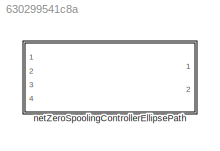
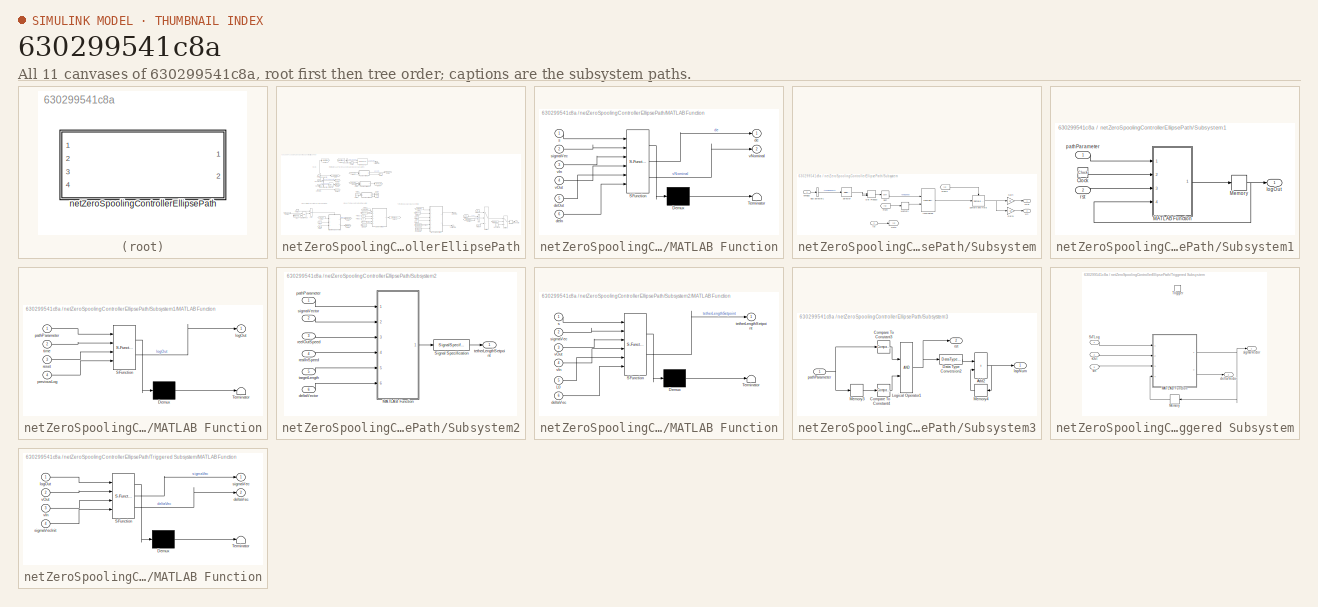
[diagram: thumbnail index - all 11 canvases of the model, root first then tree order]
MODEL slx_630299541c8a
KIND library
CONFIG AbsTol = auto
CONFIG EnableMultiTasking = off
CONFIG FixedStep = auto
CONFIG MaxStep = auto
CONFIG MinStep = auto
CONFIG RelTol = 1e-3
CONFIG SampleTimeConstraint = Unconstrained
CONFIG Solver = VariableStepAuto
CONFIG SolverName = VariableStepAuto
CONFIG StartTime = 0.0
CONFIG StopTime = 10.0
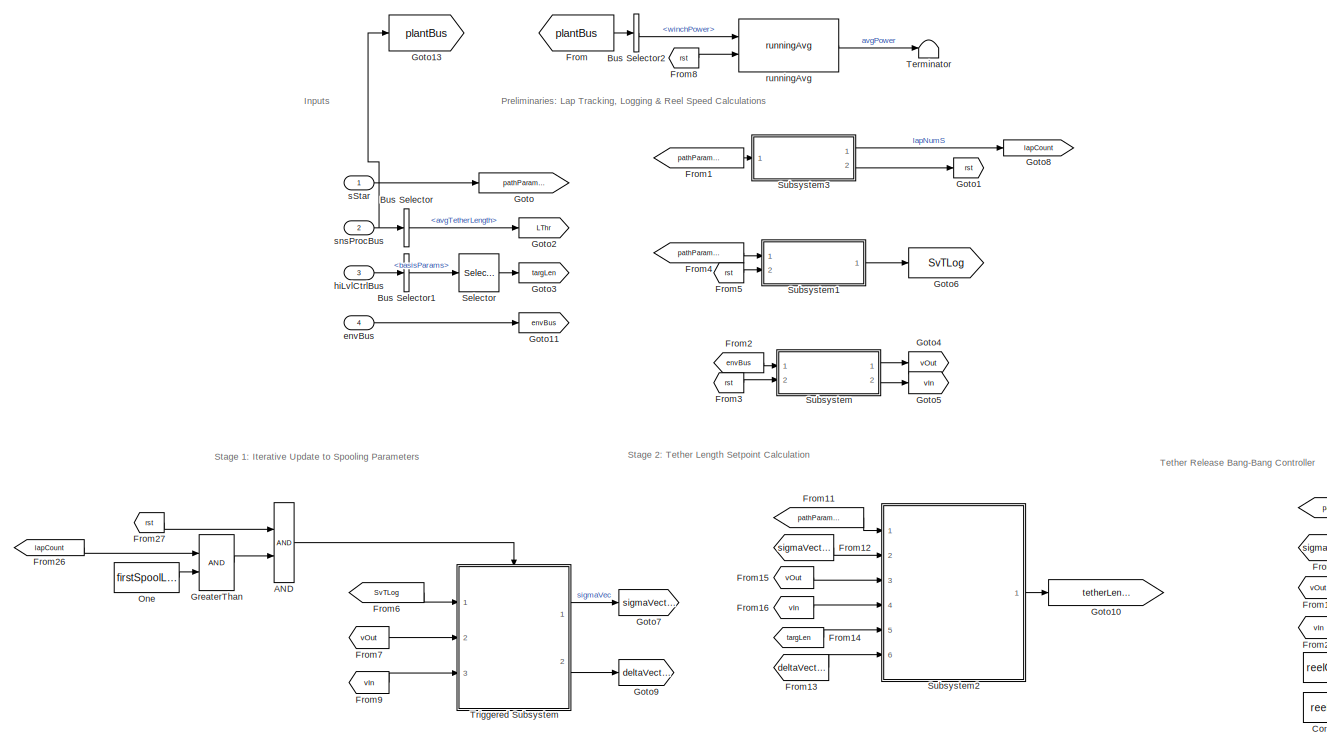
[diagram: netZeroSpoolingControllerEllipsePath - part 1/2, left side, full height]
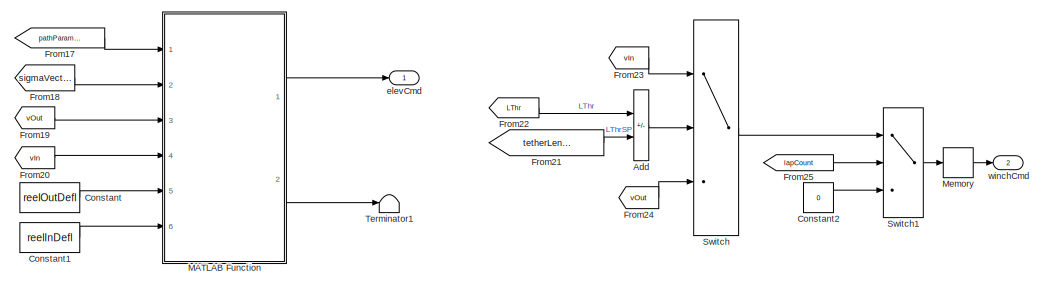
[diagram: netZeroSpoolingControllerEllipsePath - part 2/2, bottom right region]
BLOCK [SubSystem] netZeroSpoolingControllerEllipsePath
  Ports = [4, 2]
  RequestExecContextInheritance = off
BLOCK [Logic] netZeroSpoolingControllerEllipsePath/AND
  AllPortsSameDT = off
  OutDataTypeStr = boolean
  Ports = [2, 1]
BLOCK [Sum] netZeroSpoolingControllerEllipsePath/Add
  IconShape = rectangular
  Inputs = +-
  Ports = [2, 1]
BLOCK [BusSelector] netZeroSpoolingControllerEllipsePath/Bus Selector
  OutputSignals = avgTetherLength
  Ports = [1, 1]
BLOCK [BusSelector] netZeroSpoolingControllerEllipsePath/Bus Selector1
  OutputSignals = basisParams
  Ports = [1, 1]
BLOCK [BusSelector] netZeroSpoolingControllerEllipsePath/Bus Selector2
  OutputSignals = winchPower
  Ports = [1, 1]
BLOCK [Constant] netZeroSpoolingControllerEllipsePath/Constant
  Value = reelOutDefl
BLOCK [Constant] netZeroSpoolingControllerEllipsePath/Constant1
  Value = reelInDefl
BLOCK [Constant] netZeroSpoolingControllerEllipsePath/Constant2
  Value = 0
BLOCK [From] netZeroSpoolingControllerEllipsePath/From
  GotoTag = plantBus
BLOCK [From] netZeroSpoolingControllerEllipsePath/From1
  GotoTag = pathParameter
BLOCK [From] netZeroSpoolingControllerEllipsePath/From11
  GotoTag = pathParameter
BLOCK [From] netZeroSpoolingControllerEllipsePath/From12
  GotoTag = sigmaVector
BLOCK [From] netZeroSpoolingControllerEllipsePath/From13
  GotoTag = deltaVector
BLOCK [From] netZeroSpoolingControllerEllipsePath/From14
  GotoTag = targLen
BLOCK [From] netZeroSpoolingControllerEllipsePath/From15
  GotoTag = vOut
BLOCK [From] netZeroSpoolingControllerEllipsePath/From16
  GotoTag = vIn
BLOCK [From] netZeroSpoolingControllerEllipsePath/From17
  GotoTag = pathParameter
BLOCK [From] netZeroSpoolingControllerEllipsePath/From18
  GotoTag = sigmaVector
BLOCK [From] netZeroSpoolingControllerEllipsePath/From19
  GotoTag = vOut
BLOCK [From] netZeroSpoolingControllerEllipsePath/From2
  GotoTag = envBus
BLOCK [From] netZeroSpoolingControllerEllipsePath/From20
  GotoTag = vIn
BLOCK [From] netZeroSpoolingControllerEllipsePath/From21
  GotoTag = tetherLengthSetpoint
BLOCK [From] netZeroSpoolingControllerEllipsePath/From22
  GotoTag = LThr
BLOCK [From] netZeroSpoolingControllerEllipsePath/From23
  GotoTag = vIn
BLOCK [From] netZeroSpoolingControllerEllipsePath/From24
  GotoTag = vOut
BLOCK [From] netZeroSpoolingControllerEllipsePath/From25
  GotoTag = lapCount
BLOCK [From] netZeroSpoolingControllerEllipsePath/From26
  GotoTag = lapCount
BLOCK [From] netZeroSpoolingControllerEllipsePath/From27
  GotoTag = rst
BLOCK [From] netZeroSpoolingControllerEllipsePath/From3
  GotoTag = rst
BLOCK [From] netZeroSpoolingControllerEllipsePath/From4
  GotoTag = pathParameter
BLOCK [From] netZeroSpoolingControllerEllipsePath/From5
  GotoTag = rst
BLOCK [From] netZeroSpoolingControllerEllipsePath/From6
  GotoTag = SvTLog
BLOCK [From] netZeroSpoolingControllerEllipsePath/From7
  GotoTag = vOut
BLOCK [From] netZeroSpoolingControllerEllipsePath/From8
  GotoTag = rst
BLOCK [From] netZeroSpoolingControllerEllipsePath/From9
  GotoTag = vIn
BLOCK [Goto] netZeroSpoolingControllerEllipsePath/Goto
  GotoTag = pathParameter
BLOCK [Goto] netZeroSpoolingControllerEllipsePath/Goto1
  GotoTag = rst
BLOCK [Goto] netZeroSpoolingControllerEllipsePath/Goto10
  GotoTag = tetherLengthSetpoint
BLOCK [Goto] netZeroSpoolingControllerEllipsePath/Goto11
  GotoTag = envBus
BLOCK [Goto] netZeroSpoolingControllerEllipsePath/Goto13
  GotoTag = plantBus
BLOCK [Goto] netZeroSpoolingControllerEllipsePath/Goto2
  GotoTag = LThr
BLOCK [Goto] netZeroSpoolingControllerEllipsePath/Goto3
  GotoTag = targLen
BLOCK [Goto] netZeroSpoolingControllerEllipsePath/Goto4
  GotoTag = vOut
BLOCK [Goto] netZeroSpoolingControllerEllipsePath/Goto5
  GotoTag = vIn
BLOCK [Goto] netZeroSpoolingControllerEllipsePath/Goto6
  GotoTag = SvTLog
BLOCK [Goto] netZeroSpoolingControllerEllipsePath/Goto7
  GotoTag = sigmaVector
BLOCK [Goto] netZeroSpoolingControllerEllipsePath/Goto8
  GotoTag = lapCount
BLOCK [Goto] netZeroSpoolingControllerEllipsePath/Goto9
  GotoTag = deltaVector
BLOCK [RelationalOperator] netZeroSpoolingControllerEllipsePath/GreaterThan
  InputSameDT = off
  OutDataTypeStr = boolean
  Ports = [2, 1]
  RndMeth = Simplest
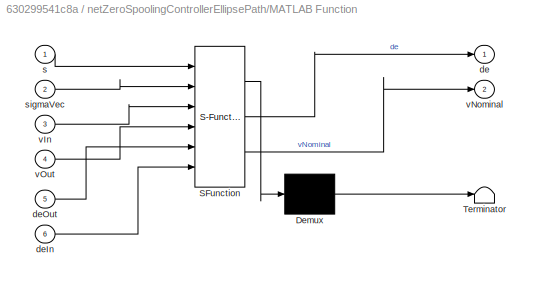
BLOCK [SubSystem] netZeroSpoolingControllerEllipsePath/MATLAB Function
  ErrorFcn = Stateflow.Translate.translate
  PermitHierarchicalResolution = ExplicitOnly
  Ports = [6, 2]
  RequestExecContextInheritance = off
  SFBlockType = MATLAB Function
  TreatAsAtomicUnit = on
BLOCK [Demux] netZeroSpoolingControllerEllipsePath/MATLAB Function/ Demux 
  Outputs = 1
  Ports = [1, 1]
BLOCK [S-Function] netZeroSpoolingControllerEllipsePath/MATLAB Function/ SFunction 
  EnableBusSupport = off
  FunctionName = sf_sfun
  PortCounts = [6 3]
  Ports = [6, 3]
  SFcnIsStateOwnerBlock = off
  SFunctionDeploymentMode = off
  Tag = Stateflow S-Function 4
BLOCK [Terminator] netZeroSpoolingControllerEllipsePath/MATLAB Function/ Terminator 
BLOCK [Outport] netZeroSpoolingControllerEllipsePath/MATLAB Function/de
  VectorParamsAs1DForOutWhenUnconnected = off
BLOCK [Inport] netZeroSpoolingControllerEllipsePath/MATLAB Function/deIn
  Port = 6
BLOCK [Inport] netZeroSpoolingControllerEllipsePath/MATLAB Function/deOut
  Port = 5
BLOCK [Inport] netZeroSpoolingControllerEllipsePath/MATLAB Function/s
BLOCK [Inport] netZeroSpoolingControllerEllipsePath/MATLAB Function/sigmaVec
  Port = 2
BLOCK [Inport] netZeroSpoolingControllerEllipsePath/MATLAB Function/vIn
  Port = 3
BLOCK [Outport] netZeroSpoolingControllerEllipsePath/MATLAB Function/vNominal
  Port = 2
  VectorParamsAs1DForOutWhenUnconnected = off
BLOCK [Inport] netZeroSpoolingControllerEllipsePath/MATLAB Function/vOut
  Port = 4
BLOCK [Memory] netZeroSpoolingControllerEllipsePath/Memory
BLOCK [Constant] netZeroSpoolingControllerEllipsePath/One
  OutDataTypeStr = Inherit: Inherit via back propagation
  Value = firstSpoolLap
BLOCK [Selector] netZeroSpoolingControllerEllipsePath/Selector
  IndexOptions = Index vector (dialog)
  Indices = 5
  InputPortWidth = 5
  OutputSizes = 1
  Ports = [1, 1]
BLOCK [SubSystem] netZeroSpoolingControllerEllipsePath/Subsystem
  Ports = [2, 2]
  RequestExecContextInheritance = off
BLOCK [BusSelector] netZeroSpoolingControllerEllipsePath/Subsystem/Bus Selector1
  OutputSignals = vhclFlowVecs
  Ports = [1, 1]
BLOCK [DotProduct] netZeroSpoolingControllerEllipsePath/Subsystem/Dot Product
  OutDataTypeStr = Inherit: Inherit via internal rule
BLOCK [From] netZeroSpoolingControllerEllipsePath/Subsystem/From
  GotoTag = rst
BLOCK [From] netZeroSpoolingControllerEllipsePath/Subsystem/From1
  GotoTag = rst
BLOCK [Gain] netZeroSpoolingControllerEllipsePath/Subsystem/Gain
  Gain = 1/3
BLOCK [Gain] netZeroSpoolingControllerEllipsePath/Subsystem/Gain1
  Gain = -1/3
BLOCK [Goto] netZeroSpoolingControllerEllipsePath/Subsystem/Goto
  GotoTag = rst
BLOCK [Memory] netZeroSpoolingControllerEllipsePath/Subsystem/Memory
BLOCK [Reference] netZeroSpoolingControllerEllipsePath/Subsystem/Sample and Hold  REF=dspsigops/Sample
and Hold
  Ports = [1, 1, 0, 1]
  SourceBlock = dspsigops/Sample\nand Hold
  SourceProductBaseCode = DS
  SourceType = Sample and Hold
BLOCK [Selector] netZeroSpoolingControllerEllipsePath/Subsystem/Selector
  IndexOptions = Select all,Index vector (dialog)
  Indices = [1 3],5
  InputPortWidth = 3
  NumberOfDimensions = 2
  OutputSizes = 1,1
  Ports = [1, 1]
BLOCK [Sqrt] netZeroSpoolingControllerEllipsePath/Subsystem/Sqrt
BLOCK [Inport] netZeroSpoolingControllerEllipsePath/Subsystem/envBus
BLOCK [Inport] netZeroSpoolingControllerEllipsePath/Subsystem/rst
  Port = 2
BLOCK [Reference] netZeroSpoolingControllerEllipsePath/Subsystem/runningAvg  REF=runningAvg_ul/runningAvg
  Ports = [2, 1]
  SourceBlock = runningAvg_ul/runningAvg
  SourceType = SubSystem
BLOCK [Outport] netZeroSpoolingControllerEllipsePath/Subsystem/vIn
  Port = 2
  VectorParamsAs1DForOutWhenUnconnected = off
BLOCK [Outport] netZeroSpoolingControllerEllipsePath/Subsystem/vOut
  VectorParamsAs1DForOutWhenUnconnected = off
BLOCK [SubSystem] netZeroSpoolingControllerEllipsePath/Subsystem1
  Ports = [2, 1]
  RequestExecContextInheritance = off
BLOCK [Clock] netZeroSpoolingControllerEllipsePath/Subsystem1/Clock
BLOCK [SubSystem] netZeroSpoolingControllerEllipsePath/Subsystem1/MATLAB Function
  ErrorFcn = Stateflow.Translate.translate
  PermitHierarchicalResolution = ExplicitOnly
  Ports = [4, 1]
  RequestExecContextInheritance = off
  SFBlockType = MATLAB Function
  TreatAsAtomicUnit = on
BLOCK [Demux] netZeroSpoolingControllerEllipsePath/Subsystem1/MATLAB Function/ Demux 
  Outputs = 1
  Ports = [1, 1]
BLOCK [S-Function] netZeroSpoolingControllerEllipsePath/Subsystem1/MATLAB Function/ SFunction 
  EnableBusSupport = off
  FunctionName = sf_sfun
  PortCounts = [4 2]
  Ports = [4, 2]
  SFcnIsStateOwnerBlock = off
  SFunctionDeploymentMode = off
  Tag = Stateflow S-Function 2
BLOCK [Terminator] netZeroSpoolingControllerEllipsePath/Subsystem1/MATLAB Function/ Terminator 
BLOCK [Outport] netZeroSpoolingControllerEllipsePath/Subsystem1/MATLAB Function/logOut
  VectorParamsAs1DForOutWhenUnconnected = off
BLOCK [Inport] netZeroSpoolingControllerEllipsePath/Subsystem1/MATLAB Function/pathParameter
BLOCK [Inport] netZeroSpoolingControllerEllipsePath/Subsystem1/MATLAB Function/previousLog
  Port = 4
BLOCK [Inport] netZeroSpoolingControllerEllipsePath/Subsystem1/MATLAB Function/reset
  Port = 3
BLOCK [Inport] netZeroSpoolingControllerEllipsePath/Subsystem1/MATLAB Function/time
  Port = 2
BLOCK [Memory] netZeroSpoolingControllerEllipsePath/Subsystem1/Memory
  InheritSampleTime = on
  InitialCondition = zeros(1000,2)
BLOCK [Outport] netZeroSpoolingControllerEllipsePath/Subsystem1/logOut
  VectorParamsAs1DForOutWhenUnconnected = off
BLOCK [Inport] netZeroSpoolingControllerEllipsePath/Subsystem1/pathParameter
BLOCK [Inport] netZeroSpoolingControllerEllipsePath/Subsystem1/rst
  Port = 2
BLOCK [SubSystem] netZeroSpoolingControllerEllipsePath/Subsystem2
  Ports = [6, 1]
  RequestExecContextInheritance = off
BLOCK [SubSystem] netZeroSpoolingControllerEllipsePath/Subsystem2/MATLAB Function
  ErrorFcn = Stateflow.Translate.translate
  PermitHierarchicalResolution = ExplicitOnly
  Ports = [6, 1]
  RequestExecContextInheritance = off
  SFBlockType = MATLAB Function
  TreatAsAtomicUnit = on
BLOCK [Demux] netZeroSpoolingControllerEllipsePath/Subsystem2/MATLAB Function/ Demux 
  Outputs = 1
  Ports = [1, 1]
BLOCK [S-Function] netZeroSpoolingControllerEllipsePath/Subsystem2/MATLAB Function/ SFunction 
  EnableBusSupport = off
  FunctionName = sf_sfun
  PortCounts = [6 2]
  Ports = [6, 2]
  SFcnIsStateOwnerBlock = off
  SFunctionDeploymentMode = off
  Tag = Stateflow S-Function 3
BLOCK [Terminator] netZeroSpoolingControllerEllipsePath/Subsystem2/MATLAB Function/ Terminator 
BLOCK [Inport] netZeroSpoolingControllerEllipsePath/Subsystem2/MATLAB Function/L0
  Port = 5
BLOCK [Inport] netZeroSpoolingControllerEllipsePath/Subsystem2/MATLAB Function/deltaVec
  Port = 6
BLOCK [Inport] netZeroSpoolingControllerEllipsePath/Subsystem2/MATLAB Function/s
BLOCK [Inport] netZeroSpoolingControllerEllipsePath/Subsystem2/MATLAB Function/sigmaVec
  Port = 2
BLOCK [Outport] netZeroSpoolingControllerEllipsePath/Subsystem2/MATLAB Function/tetherLengthSetpoint
  VectorParamsAs1DForOutWhenUnconnected = off
BLOCK [Inport] netZeroSpoolingControllerEllipsePath/Subsystem2/MATLAB Function/vIn
  Port = 4
BLOCK [Inport] netZeroSpoolingControllerEllipsePath/Subsystem2/MATLAB Function/vOut
  Port = 3
BLOCK [SignalSpecification] netZeroSpoolingControllerEllipsePath/Subsystem2/Signal Specification
  Dimensions = [1 1]
BLOCK [Inport] netZeroSpoolingControllerEllipsePath/Subsystem2/deltaVector
  Port = 6
BLOCK [Inport] netZeroSpoolingControllerEllipsePath/Subsystem2/pathParameter
BLOCK [Inport] netZeroSpoolingControllerEllipsePath/Subsystem2/realInSpeed
  Port = 4
BLOCK [Inport] netZeroSpoolingControllerEllipsePath/Subsystem2/reelOutSpeed
  Port = 3
BLOCK [Inport] netZeroSpoolingControllerEllipsePath/Subsystem2/sigmaVector
  Port = 2
BLOCK [Inport] netZeroSpoolingControllerEllipsePath/Subsystem2/targetLength
  Port = 5
BLOCK [Outport] netZeroSpoolingControllerEllipsePath/Subsystem2/tetherLengthSetpoint
  VectorParamsAs1DForOutWhenUnconnected = off
BLOCK [SubSystem] netZeroSpoolingControllerEllipsePath/Subsystem3
  Ports = [1, 2]
  RequestExecContextInheritance = off
BLOCK [Sum] netZeroSpoolingControllerEllipsePath/Subsystem3/Add2
  IconShape = rectangular
  Ports = [2, 1]
BLOCK [Reference] netZeroSpoolingControllerEllipsePath/Subsystem3/Compare To Constant3  REF=simulink/Logic and Bit
Operations/Compare
To Constant
  Ports = [1, 1]
  SourceBlock = simulink/Logic and Bit\nOperations/Compare\nTo Constant
  SourceProductBaseCode = SL
  SourceType = Compare To Constant
BLOCK [Reference] netZeroSpoolingControllerEllipsePath/Subsystem3/Compare To Constant4  REF=simulink/Logic and Bit
Operations/Compare
To Constant
  Ports = [1, 1]
  SourceBlock = simulink/Logic and Bit\nOperations/Compare\nTo Constant
  SourceProductBaseCode = SL
  SourceType = Compare To Constant
BLOCK [DataTypeConversion] netZeroSpoolingControllerEllipsePath/Subsystem3/Data Type Conversion2
  OutDataTypeStr = double
  RndMeth = Floor
  SaturateOnIntegerOverflow = off
BLOCK [Logic] netZeroSpoolingControllerEllipsePath/Subsystem3/Logical Operator1
  AllPortsSameDT = off
  OutDataTypeStr = boolean
  Ports = [2, 1]
BLOCK [Memory] netZeroSpoolingControllerEllipsePath/Subsystem3/Memory3
BLOCK [Memory] netZeroSpoolingControllerEllipsePath/Subsystem3/Memory4
BLOCK [Outport] netZeroSpoolingControllerEllipsePath/Subsystem3/lapNum
  VectorParamsAs1DForOutWhenUnconnected = off
BLOCK [Inport] netZeroSpoolingControllerEllipsePath/Subsystem3/pathParameter
BLOCK [Outport] netZeroSpoolingControllerEllipsePath/Subsystem3/rst
  Port = 2
  VectorParamsAs1DForOutWhenUnconnected = off
BLOCK [Switch] netZeroSpoolingControllerEllipsePath/Switch
  Criteria = u2 > Threshold
  InputSameDT = off
  SaturateOnIntegerOverflow = off
BLOCK [Switch] netZeroSpoolingControllerEllipsePath/Switch1
  Criteria = u2 > Threshold
  InputSameDT = off
  SaturateOnIntegerOverflow = off
BLOCK [Terminator] netZeroSpoolingControllerEllipsePath/Terminator
BLOCK [Terminator] netZeroSpoolingControllerEllipsePath/Terminator1
BLOCK [SubSystem] netZeroSpoolingControllerEllipsePath/Triggered Subsystem
  Ports = [3, 2, 0, 1]
  RequestExecContextInheritance = off
  TreatAsAtomicUnit = on
BLOCK [SubSystem] netZeroSpoolingControllerEllipsePath/Triggered Subsystem/MATLAB Function
  ErrorFcn = Stateflow.Translate.translate
  PermitHierarchicalResolution = ExplicitOnly
  Ports = [4, 2]
  RequestExecContextInheritance = off
  SFBlockType = MATLAB Function
  TreatAsAtomicUnit = on
BLOCK [Demux] netZeroSpoolingControllerEllipsePath/Triggered Subsystem/MATLAB Function/ Demux 
  Outputs = 1
  Ports = [1, 1]
BLOCK [S-Function] netZeroSpoolingControllerEllipsePath/Triggered Subsystem/MATLAB Function/ SFunction 
  EnableBusSupport = off
  FunctionName = sf_sfun
  PortCounts = [4 3]
  Ports = [4, 3]
  SFcnIsStateOwnerBlock = off
  SFunctionDeploymentMode = off
  Tag = Stateflow S-Function 1
BLOCK [Terminator] netZeroSpoolingControllerEllipsePath/Triggered Subsystem/MATLAB Function/ Terminator 
BLOCK [Outport] netZeroSpoolingControllerEllipsePath/Triggered Subsystem/MATLAB Function/deltaVec
  Port = 2
  VectorParamsAs1DForOutWhenUnconnected = off
BLOCK [Inport] netZeroSpoolingControllerEllipsePath/Triggered Subsystem/MATLAB Function/logOut
BLOCK [Outport] netZeroSpoolingControllerEllipsePath/Triggered Subsystem/MATLAB Function/sigmaVec
  VectorParamsAs1DForOutWhenUnconnected = off
BLOCK [Inport] netZeroSpoolingControllerEllipsePath/Triggered Subsystem/MATLAB Function/sigmaVecInit
  Port = 4
BLOCK [Inport] netZeroSpoolingControllerEllipsePath/Triggered Subsystem/MATLAB Function/vIn
  Port = 3
BLOCK [Inport] netZeroSpoolingControllerEllipsePath/Triggered Subsystem/MATLAB Function/vOut
  Port = 2
BLOCK [Memory] netZeroSpoolingControllerEllipsePath/Triggered Subsystem/Memory
  InheritSampleTime = on
  InitialCondition = sigmaVecInit
BLOCK [Inport] netZeroSpoolingControllerEllipsePath/Triggered Subsystem/SvTLog
BLOCK [TriggerPort] netZeroSpoolingControllerEllipsePath/Triggered Subsystem/Trigger
  Ports = []
  StatesWhenEnabling = held
  VariantControl = Variant
BLOCK [Outport] netZeroSpoolingControllerEllipsePath/Triggered Subsystem/deltaVector
  Port = 2
  VectorParamsAs1DForOutWhenUnconnected = off
BLOCK [Outport] netZeroSpoolingControllerEllipsePath/Triggered Subsystem/sigmaVector 
  VectorParamsAs1DForOutWhenUnconnected = off
BLOCK [Inport] netZeroSpoolingControllerEllipsePath/Triggered Subsystem/vIn
  Port = 3
BLOCK [Inport] netZeroSpoolingControllerEllipsePath/Triggered Subsystem/vOut
  Port = 2
BLOCK [Outport] netZeroSpoolingControllerEllipsePath/elevCmd 
  VectorParamsAs1DForOutWhenUnconnected = off
BLOCK [Inport] netZeroSpoolingControllerEllipsePath/envBus
  OutDataTypeStr = Bus: envBus
  Port = 4
BLOCK [Inport] netZeroSpoolingControllerEllipsePath/hiLvlCtrlBus
  OutDataTypeStr = Bus: hiLvlCtrlBus
  Port = 3
BLOCK [Reference] netZeroSpoolingControllerEllipsePath/runningAvg  REF=runningAvg_ul/runningAvg
  Ports = [2, 1]
  SourceBlock = runningAvg_ul/runningAvg
  SourceType = SubSystem
BLOCK [Inport] netZeroSpoolingControllerEllipsePath/sStar 
BLOCK [Inport] netZeroSpoolingControllerEllipsePath/snsProcBus
  OutDataTypeStr = Bus: sensorsProcessingBus
  Port = 2
BLOCK [Outport] netZeroSpoolingControllerEllipsePath/winchCmd
  Port = 2
  VectorParamsAs1DForOutWhenUnconnected = off
ANNOTATION netZeroSpoolingControllerEllipsePath: Inputs
ANNOTATION netZeroSpoolingControllerEllipsePath: Preliminaries: Lap Tracking, Logging & Reel Speed Calculations
ANNOTATION netZeroSpoolingControllerEllipsePath: Stage 1: Iterative Update to Spooling Parameters
ANNOTATION netZeroSpoolingControllerEllipsePath: Stage 2: Tether Length Setpoint Calculation
ANNOTATION netZeroSpoolingControllerEllipsePath: Tether Release Bang-Bang Controller
LINE netZeroSpoolingControllerEllipsePath/AND:1 -> netZeroSpoolingControllerEllipsePath/Triggered Subsystem:trigger
LINE netZeroSpoolingControllerEllipsePath/Add:1 -> netZeroSpoolingControllerEllipsePath/Switch:2
LINE netZeroSpoolingControllerEllipsePath/Bus Selector1:1 -> netZeroSpoolingControllerEllipsePath/Selector:1
LINE netZeroSpoolingControllerEllipsePath/Bus Selector2:1 -> netZeroSpoolingControllerEllipsePath/runningAvg:1
LINE netZeroSpoolingControllerEllipsePath/Bus Selector:1 -> netZeroSpoolingControllerEllipsePath/Goto2:1
LINE netZeroSpoolingControllerEllipsePath/Constant1:1 -> netZeroSpoolingControllerEllipsePath/MATLAB Function:6
LINE netZeroSpoolingControllerEllipsePath/Constant2:1 -> netZeroSpoolingControllerEllipsePath/Switch1:3
LINE netZeroSpoolingControllerEllipsePath/Constant:1 -> netZeroSpoolingControllerEllipsePath/MATLAB Function:5
LINE netZeroSpoolingControllerEllipsePath/From11:1 -> netZeroSpoolingControllerEllipsePath/Subsystem2:1
LINE netZeroSpoolingControllerEllipsePath/From12:1 -> netZeroSpoolingControllerEllipsePath/Subsystem2:2
LINE netZeroSpoolingControllerEllipsePath/From13:1 -> netZeroSpoolingControllerEllipsePath/Subsystem2:6
LINE netZeroSpoolingControllerEllipsePath/From14:1 -> netZeroSpoolingControllerEllipsePath/Subsystem2:5
LINE netZeroSpoolingControllerEllipsePath/From15:1 -> netZeroSpoolingControllerEllipsePath/Subsystem2:3
LINE netZeroSpoolingControllerEllipsePath/From16:1 -> netZeroSpoolingControllerEllipsePath/Subsystem2:4
LINE netZeroSpoolingControllerEllipsePath/From17:1 -> netZeroSpoolingControllerEllipsePath/MATLAB Function:1
LINE netZeroSpoolingControllerEllipsePath/From18:1 -> netZeroSpoolingControllerEllipsePath/MATLAB Function:2
LINE netZeroSpoolingControllerEllipsePath/From19:1 -> netZeroSpoolingControllerEllipsePath/MATLAB Function:3
LINE netZeroSpoolingControllerEllipsePath/From1:1 -> netZeroSpoolingControllerEllipsePath/Subsystem3:1
LINE netZeroSpoolingControllerEllipsePath/From20:1 -> netZeroSpoolingControllerEllipsePath/MATLAB Function:4
LINE netZeroSpoolingControllerEllipsePath/From21:1 -> netZeroSpoolingControllerEllipsePath/Add:2
LINE netZeroSpoolingControllerEllipsePath/From22:1 -> netZeroSpoolingControllerEllipsePath/Add:1
LINE netZeroSpoolingControllerEllipsePath/From23:1 -> netZeroSpoolingControllerEllipsePath/Switch:1
LINE netZeroSpoolingControllerEllipsePath/From24:1 -> netZeroSpoolingControllerEllipsePath/Switch:3
LINE netZeroSpoolingControllerEllipsePath/From25:1 -> netZeroSpoolingControllerEllipsePath/Switch1:2
LINE netZeroSpoolingControllerEllipsePath/From26:1 -> netZeroSpoolingControllerEllipsePath/GreaterThan:1
LINE netZeroSpoolingControllerEllipsePath/From27:1 -> netZeroSpoolingControllerEllipsePath/AND:1
LINE netZeroSpoolingControllerEllipsePath/From2:1 -> netZeroSpoolingControllerEllipsePath/Subsystem:1
LINE netZeroSpoolingControllerEllipsePath/From3:1 -> netZeroSpoolingControllerEllipsePath/Subsystem:2
LINE netZeroSpoolingControllerEllipsePath/From4:1 -> netZeroSpoolingControllerEllipsePath/Subsystem1:1
LINE netZeroSpoolingControllerEllipsePath/From5:1 -> netZeroSpoolingControllerEllipsePath/Subsystem1:2
LINE netZeroSpoolingControllerEllipsePath/From6:1 -> netZeroSpoolingControllerEllipsePath/Triggered Subsystem:1
LINE netZeroSpoolingControllerEllipsePath/From7:1 -> netZeroSpoolingControllerEllipsePath/Triggered Subsystem:2
LINE netZeroSpoolingControllerEllipsePath/From8:1 -> netZeroSpoolingControllerEllipsePath/runningAvg:2
LINE netZeroSpoolingControllerEllipsePath/From9:1 -> netZeroSpoolingControllerEllipsePath/Triggered Subsystem:3
LINE netZeroSpoolingControllerEllipsePath/From:1 -> netZeroSpoolingControllerEllipsePath/Bus Selector2:1
LINE netZeroSpoolingControllerEllipsePath/GreaterThan:1 -> netZeroSpoolingControllerEllipsePath/AND:2
LINE netZeroSpoolingControllerEllipsePath/MATLAB Function:1 -> netZeroSpoolingControllerEllipsePath/elevCmd :1
LINE netZeroSpoolingControllerEllipsePath/MATLAB Function:2 -> netZeroSpoolingControllerEllipsePath/Terminator1:1
LINE netZeroSpoolingControllerEllipsePath/Memory:1 -> netZeroSpoolingControllerEllipsePath/winchCmd:1
LINE netZeroSpoolingControllerEllipsePath/One:1 -> netZeroSpoolingControllerEllipsePath/GreaterThan:2
LINE netZeroSpoolingControllerEllipsePath/Selector:1 -> netZeroSpoolingControllerEllipsePath/Goto3:1
LINE netZeroSpoolingControllerEllipsePath/Subsystem/Bus Selector1:1 -> netZeroSpoolingControllerEllipsePath/Subsystem/Selector:1
LINE netZeroSpoolingControllerEllipsePath/Subsystem/Dot Product:1 -> netZeroSpoolingControllerEllipsePath/Subsystem/Sqrt:1
LINE netZeroSpoolingControllerEllipsePath/Subsystem/From1:1 -> netZeroSpoolingControllerEllipsePath/Subsystem/Sample and Hold:trigger
LINE netZeroSpoolingControllerEllipsePath/Subsystem/From:1 -> netZeroSpoolingControllerEllipsePath/Subsystem/Memory:1
LINE netZeroSpoolingControllerEllipsePath/Subsystem/Gain1:1 -> netZeroSpoolingControllerEllipsePath/Subsystem/vIn:1
LINE netZeroSpoolingControllerEllipsePath/Subsystem/Gain:1 -> netZeroSpoolingControllerEllipsePath/Subsystem/vOut:1
LINE netZeroSpoolingControllerEllipsePath/Subsystem/Memory:1 -> netZeroSpoolingControllerEllipsePath/Subsystem/runningAvg:2
NET netZeroSpoolingControllerEllipsePath/Subsystem/Sample and Hold:1 -> netZeroSpoolingControllerEllipsePath/Subsystem/Gain1:1, netZeroSpoolingControllerEllipsePath/Subsystem/Gain:1
NET netZeroSpoolingControllerEllipsePath/Subsystem/Selector:1 -> netZeroSpoolingControllerEllipsePath/Subsystem/Dot Product:1, netZeroSpoolingControllerEllipsePath/Subsystem/Dot Product:2
LINE netZeroSpoolingControllerEllipsePath/Subsystem/Sqrt:1 -> netZeroSpoolingControllerEllipsePath/Subsystem/runningAvg:1
LINE netZeroSpoolingControllerEllipsePath/Subsystem/envBus:1 -> netZeroSpoolingControllerEllipsePath/Subsystem/Bus Selector1:1
LINE netZeroSpoolingControllerEllipsePath/Subsystem/rst:1 -> netZeroSpoolingControllerEllipsePath/Subsystem/Goto:1
LINE netZeroSpoolingControllerEllipsePath/Subsystem/runningAvg:1 -> netZeroSpoolingControllerEllipsePath/Subsystem/Sample and Hold:1
LINE netZeroSpoolingControllerEllipsePath/Subsystem1/Clock:1 -> netZeroSpoolingControllerEllipsePath/Subsystem1/MATLAB Function:2
LINE netZeroSpoolingControllerEllipsePath/Subsystem1/MATLAB Function:1 -> netZeroSpoolingControllerEllipsePath/Subsystem1/Memory:1
NET netZeroSpoolingControllerEllipsePath/Subsystem1/Memory:1 -> netZeroSpoolingControllerEllipsePath/Subsystem1/MATLAB Function:4, netZeroSpoolingControllerEllipsePath/Subsystem1/logOut:1
LINE netZeroSpoolingControllerEllipsePath/Subsystem1/pathParameter:1 -> netZeroSpoolingControllerEllipsePath/Subsystem1/MATLAB Function:1
LINE netZeroSpoolingControllerEllipsePath/Subsystem1/rst:1 -> netZeroSpoolingControllerEllipsePath/Subsystem1/MATLAB Function:3
LINE netZeroSpoolingControllerEllipsePath/Subsystem1:1 -> netZeroSpoolingControllerEllipsePath/Goto6:1
LINE netZeroSpoolingControllerEllipsePath/Subsystem2/MATLAB Function:1 -> netZeroSpoolingControllerEllipsePath/Subsystem2/Signal Specification:1
LINE netZeroSpoolingControllerEllipsePath/Subsystem2/Signal Specification:1 -> netZeroSpoolingControllerEllipsePath/Subsystem2/tetherLengthSetpoint:1
LINE netZeroSpoolingControllerEllipsePath/Subsystem2/deltaVector:1 -> netZeroSpoolingControllerEllipsePath/Subsystem2/MATLAB Function:6
LINE netZeroSpoolingControllerEllipsePath/Subsystem2/pathParameter:1 -> netZeroSpoolingControllerEllipsePath/Subsystem2/MATLAB Function:1
LINE netZeroSpoolingControllerEllipsePath/Subsystem2/realInSpeed:1 -> netZeroSpoolingControllerEllipsePath/Subsystem2/MATLAB Function:4
LINE netZeroSpoolingControllerEllipsePath/Subsystem2/reelOutSpeed:1 -> netZeroSpoolingControllerEllipsePath/Subsystem2/MATLAB Function:3
LINE netZeroSpoolingControllerEllipsePath/Subsystem2/sigmaVector:1 -> netZeroSpoolingControllerEllipsePath/Subsystem2/MATLAB Function:2
LINE netZeroSpoolingControllerEllipsePath/Subsystem2/targetLength:1 -> netZeroSpoolingControllerEllipsePath/Subsystem2/MATLAB Function:5
LINE netZeroSpoolingControllerEllipsePath/Subsystem2:1 -> netZeroSpoolingControllerEllipsePath/Goto10:1
NET netZeroSpoolingControllerEllipsePath/Subsystem3/Add2:1 -> netZeroSpoolingControllerEllipsePath/Subsystem3/Memory4:1, netZeroSpoolingControllerEllipsePath/Subsystem3/lapNum:1
LINE netZeroSpoolingControllerEllipsePath/Subsystem3/Compare To Constant3:1 -> netZeroSpoolingControllerEllipsePath/Subsystem3/Logical Operator1:1
LINE netZeroSpoolingControllerEllipsePath/Subsystem3/Compare To Constant4:1 -> netZeroSpoolingControllerEllipsePath/Subsystem3/Logical Operator1:2
LINE netZeroSpoolingControllerEllipsePath/Subsystem3/Data Type Conversion2:1 -> netZeroSpoolingControllerEllipsePath/Subsystem3/Add2:1
NET netZeroSpoolingControllerEllipsePath/Subsystem3/Logical Operator1:1 -> netZeroSpoolingControllerEllipsePath/Subsystem3/Data Type Conversion2:1, netZeroSpoolingControllerEllipsePath/Subsystem3/rst:1
LINE netZeroSpoolingControllerEllipsePath/Subsystem3/Memory3:1 -> netZeroSpoolingControllerEllipsePath/Subsystem3/Compare To Constant4:1
LINE netZeroSpoolingControllerEllipsePath/Subsystem3/Memory4:1 -> netZeroSpoolingControllerEllipsePath/Subsystem3/Add2:2
NET netZeroSpoolingControllerEllipsePath/Subsystem3/pathParameter:1 -> netZeroSpoolingControllerEllipsePath/Subsystem3/Compare To Constant3:1, netZeroSpoolingControllerEllipsePath/Subsystem3/Memory3:1
LINE netZeroSpoolingControllerEllipsePath/Subsystem3:1 -> netZeroSpoolingControllerEllipsePath/Goto8:1
LINE netZeroSpoolingControllerEllipsePath/Subsystem3:2 -> netZeroSpoolingControllerEllipsePath/Goto1:1
LINE netZeroSpoolingControllerEllipsePath/Subsystem:1 -> netZeroSpoolingControllerEllipsePath/Goto4:1
LINE netZeroSpoolingControllerEllipsePath/Subsystem:2 -> netZeroSpoolingControllerEllipsePath/Goto5:1
LINE netZeroSpoolingControllerEllipsePath/Switch1:1 -> netZeroSpoolingControllerEllipsePath/Memory:1
LINE netZeroSpoolingControllerEllipsePath/Switch:1 -> netZeroSpoolingControllerEllipsePath/Switch1:1
NET netZeroSpoolingControllerEllipsePath/Triggered Subsystem/MATLAB Function:1 -> netZeroSpoolingControllerEllipsePath/Triggered Subsystem/Memory:1, netZeroSpoolingControllerEllipsePath/Triggered Subsystem/sigmaVector :1
LINE netZeroSpoolingControllerEllipsePath/Triggered Subsystem/MATLAB Function:2 -> netZeroSpoolingControllerEllipsePath/Triggered Subsystem/deltaVector:1
LINE netZeroSpoolingControllerEllipsePath/Triggered Subsystem/Memory:1 -> netZeroSpoolingControllerEllipsePath/Triggered Subsystem/MATLAB Function:4
LINE netZeroSpoolingControllerEllipsePath/Triggered Subsystem/SvTLog:1 -> netZeroSpoolingControllerEllipsePath/Triggered Subsystem/MATLAB Function:1
LINE netZeroSpoolingControllerEllipsePath/Triggered Subsystem/vIn:1 -> netZeroSpoolingControllerEllipsePath/Triggered Subsystem/MATLAB Function:3
LINE netZeroSpoolingControllerEllipsePath/Triggered Subsystem/vOut:1 -> netZeroSpoolingControllerEllipsePath/Triggered Subsystem/MATLAB Function:2
LINE netZeroSpoolingControllerEllipsePath/Triggered Subsystem:1 -> netZeroSpoolingControllerEllipsePath/Goto7:1
LINE netZeroSpoolingControllerEllipsePath/Triggered Subsystem:2 -> netZeroSpoolingControllerEllipsePath/Goto9:1
LINE netZeroSpoolingControllerEllipsePath/envBus:1 -> netZeroSpoolingControllerEllipsePath/Goto11:1
LINE netZeroSpoolingControllerEllipsePath/hiLvlCtrlBus:1 -> netZeroSpoolingControllerEllipsePath/Bus Selector1:1
LINE netZeroSpoolingControllerEllipsePath/runningAvg:1 -> netZeroSpoolingControllerEllipsePath/Terminator:1
LINE netZeroSpoolingControllerEllipsePath/sStar :1 -> netZeroSpoolingControllerEllipsePath/Goto:1
NET netZeroSpoolingControllerEllipsePath/snsProcBus:1 -> netZeroSpoolingControllerEllipsePath/Bus Selector:1, netZeroSpoolingControllerEllipsePath/Goto13:1
note: NET lines group one-source signal fan-out (src -> all destinations, sorted); 1:1 wires keep LINE
CHART netZeroSpoolingControllerEllipsePath/Triggered
Subsystem/MATLAB Function states=1 transitions=1
  STATE_LABEL 'eML_blk_kernel()'
  STATE_LABEL 'SCRIPT:\nfunction [sigmaVec, deltaVec] = fcn(logOut,vOut,vIn, sigmaVecInit)\nsc = sigmaVecInit(1);\nsw = sigmaVecInit(2);\nsigmaVec = sigmaVecInit;\n\ncleanLog = [ 0 0; ...\n    logOut(and(and(logOut(:,1)~=0,logOut(:,2)~=0),and(~isnan(logOut(:,1)),~isnan(logOut(:,2)))),:)];\n \n% Extract regions\nr1 = cleanLog(and(cleanLog(:,1)>=0        ,cleanLog(:,1)<sc-sw),:);\nr2 = cleanLog(and(cleanLog(:,1)>=sc-sw    ,c...<+955ch>'
CHART netZeroSpoolingControllerEllipsePath/Subsystem1/MATLAB Function states=1 transitions=1
  STATE_LABEL 'eML_blk_kernel()'
  STATE_LABEL 'SCRIPT:\nfunction logOut = fcn(pathParameter,time , reset,previousLog)\n\nif reset \n    previousLog = nan(1000,2);\nend\n\nlogOut = previousLog; \n\nindex = min([max([round(pathParameter*1000),1]),1000]);\nlogOut(index,1) = pathParameter;\nlogOut(index,2) = time;\nend'
CHART netZeroSpoolingControllerEllipsePath/Subsystem2/MATLAB Function states=1 transitions=1
  STATE_LABEL 'eML_blk_kernel()'
  STATE_LABEL 'SCRIPT:\nfunction tetherLengthSetpoint = fcn(s,sigmaVec,vOut,vIn,L0,deltaVec)\n\ntetherLengthSetpoint = LThrInt1(s,sigmaVec,vOut,vIn,L0,deltaVec);\nend\n'
CHART netZeroSpoolingControllerEllipsePath/MATLAB Function states=1 transitions=1
  STATE_LABEL 'eML_blk_kernel()'
  STATE_LABEL 'SCRIPT:\nfunction [de,vNominal] = fcn(s,sigmaVec, vIn, vOut, deOut, deIn)\n\nvNominal = vOut;\nde = deOut;\n\nsc = sigmaVec(1);\nsw = sigmaVec(2);\n\nif s>=sc-sw && s<=sc+sw\n    vNominal = vIn;\n    de = deIn;\n    return\nend\n\nif s>=0.5+sc-sw && s<=0.5+sc+sw\n    vNominal = vIn;\n    de = deIn;\n    return\nend\nend'
CHART  states=0 transitions=0
CHART  states=0 transitions=0
CHART  states=0 transitions=0
CHART  states=0 transitions=0
